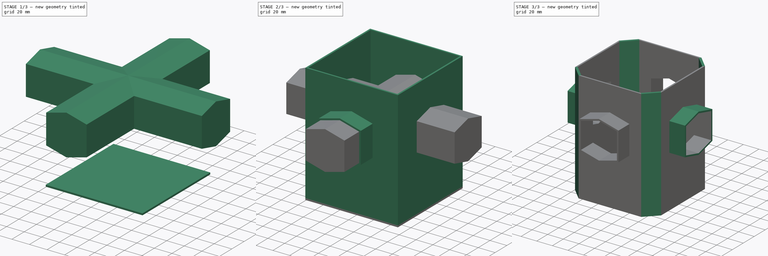
[diagram: build sequence overview — one tinted view per stage of 3, left to right]
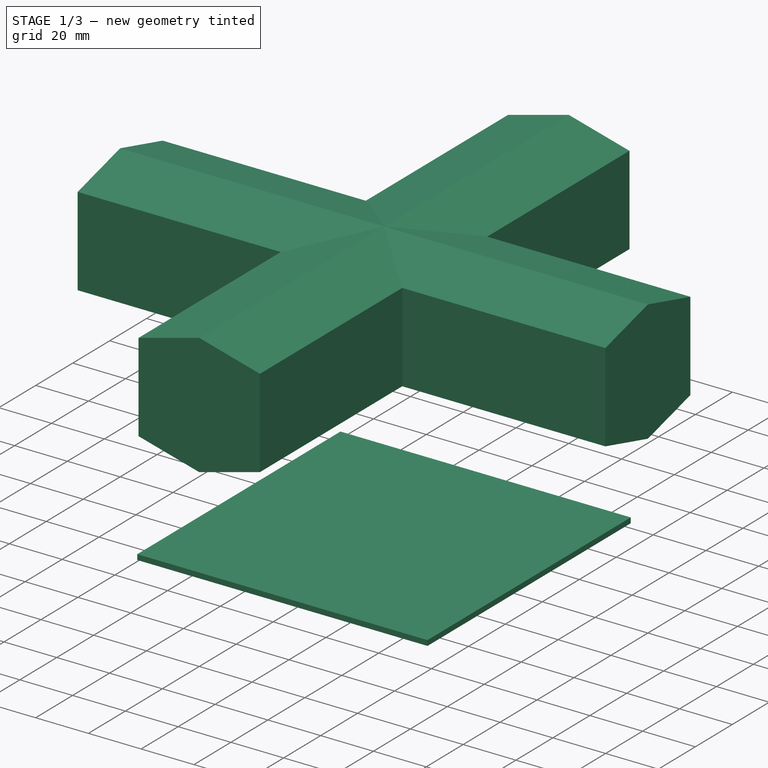
[diagram: stage 1 of 3 — iso view after this stage's code; geometry added in this stage tinted green]
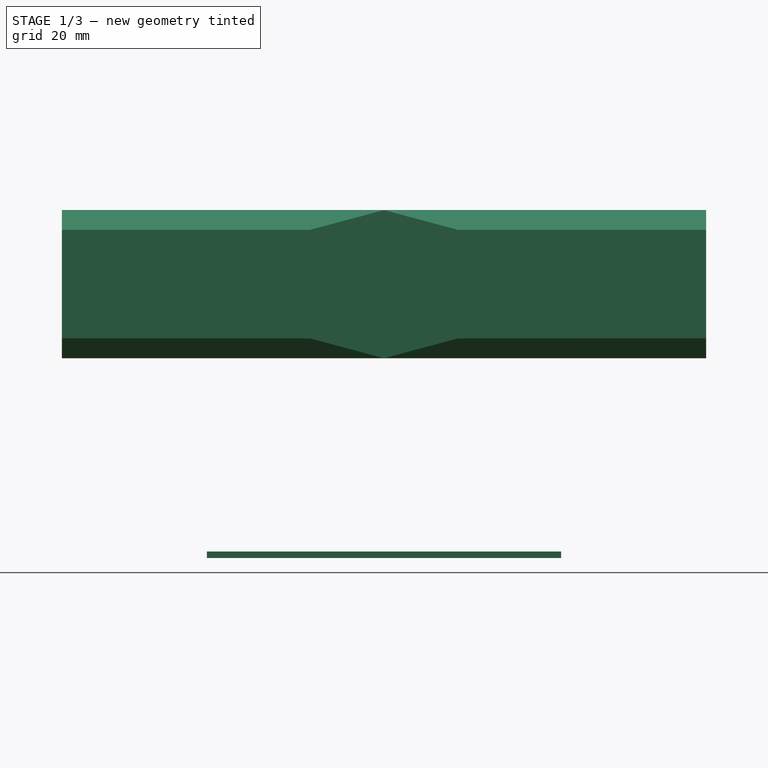
[diagram: stage 1 of 3 — front view after this stage's code; geometry added in this stage tinted green]
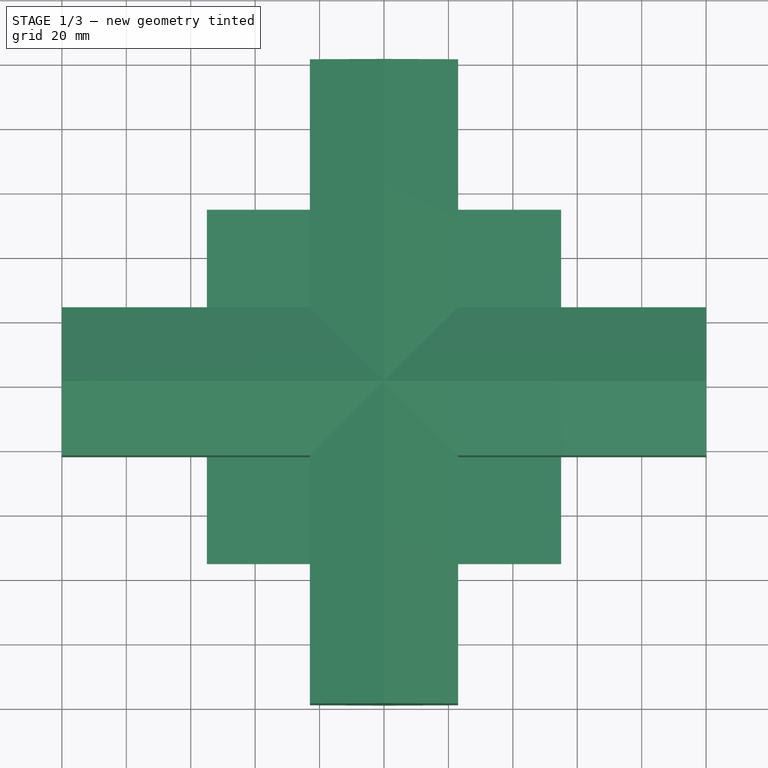
[diagram: stage 1 of 3 — top view after this stage's code; geometry added in this stage tinted green]
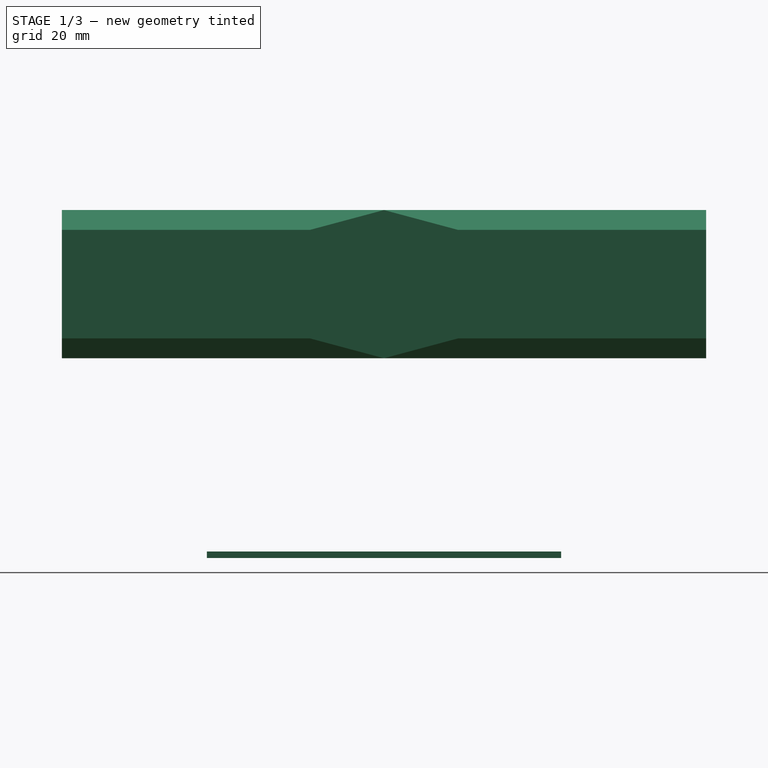
[diagram: stage 1 of 3 — right view after this stage's code; geometry added in this stage tinted green]
FCSTD DOCUMENT  (FreeCAD 0.20R28720 (Git))
Label: Aeroponics_Modular_4-Tower_Hub
License: All rights reserved
LicenseURL: http://en.wikipedia.org/wiki/All_rights_reserved
objects: Sketcher::SketchObject×4, PartDesign::Pad×4, PartDesign::PolarPattern×2, PartDesign::Body×2, Part::Cut×1, Part::Chamfer×1
note: 18 computed .brp shape members not serialized (recipe doc carries the construction recipe); baked Part::Feature solids carry a one-line shape summary decoded from their .brp

FEATURE [Sketcher::SketchObject] Sketch
  FullyConstrained = true
  MapMode = 5
  Support = -> [XY_Plane]
  sketch-geometry (4):
    g0: LineSegment StartX=-55 StartY=55 StartZ=0 EndX=55 EndY=55 EndZ=0
    g1: LineSegment StartX=55 StartY=55 StartZ=0 EndX=55 EndY=-55 EndZ=0
    g2: LineSegment StartX=55 StartY=-55 StartZ=0 EndX=-55 EndY=-55 EndZ=0
    g3: LineSegment StartX=-55 StartY=-55 StartZ=0 EndX=-55 EndY=55 EndZ=0
  constraints (10):
    c: Coincident(g0,g1)
    c: Coincident(g1,g2)
    c: Coincident(g2,g3)
    c: Coincident(g3,g0)
    c: Horizontal(g2)
    c: Vertical(g1)
    c: DistanceX(g2,g2) = 110
    c: Equal(g2,g1)
    c: Symmetric(g0,g0,g-2)
    c: Symmetric(g0,g2,g-1)
FEATURE [PartDesign::Pad] Pad
  Direction = (0,0,1)
  Length = 2
  Length2 = 10
  Profile = -> Sketch
  ReferenceAxis = -> Sketch [N_Axis]
  Type = 0
FEATURE [Sketcher::SketchObject] Sketch002
  FullyConstrained = true
  MapMode = 5
  Placement = pos=(0,-55,0) rot=(1,0,0;1.5708rad)
  Support = -> [Pad001]
  sketch-geometry (6):
    g0: LineSegment StartX=-25 StartY=66.6987 StartZ=0 EndX=0 EndY=60 EndZ=0
    g1: LineSegment StartX=0 StartY=60 StartZ=0 EndX=25 EndY=66.6987 EndZ=0
    g2: LineSegment StartX=-25 StartY=66.6987 StartZ=0 EndX=-25 EndY=103.301 EndZ=0
    g3: LineSegment StartX=25 StartY=66.6987 StartZ=0 EndX=25 EndY=103.301 EndZ=0
    g4: LineSegment StartX=-25 StartY=103.301 StartZ=0 EndX=0 EndY=110 EndZ=0
    g5: LineSegment StartX=0 StartY=110 StartZ=0 EndX=25 EndY=103.301 EndZ=0
  constraints (18):
    c: PointOnObject(g0,g-2)
    c: Coincident(g1,g0)
    c: Equal(g0,g1)
    c: DistanceY(g-1,g0) = 60
    c: DistanceX(g0,g1) = 50
    c: Angle(g1,g0) = 2.61799
    c: Coincident(g2,g0)
    c: Vertical(g2)
    c: Coincident(g3,g1)
    c: Vertical(g3)
    c: Coincident(g4,g2)
    c: PointOnObject(g4,g-2)
    c: Coincident(g5,g4)
    c: Coincident(g5,g3)
    c: Angle(g4,g5) = 2.61799
    c: Equal(g3,g2)
    c: DistanceY(g0,g4) = 50
    c: Horizontal(g0,g1)
FEATURE [Sketcher::SketchObject] Sketch003
  FullyConstrained = true
  MapMode = 5
  Placement = pos=(0,0,0) rot=(1,0,0;1.5708rad)
  Support = -> [XZ_Plane001]
  sketch-geometry (6):
    g0: LineSegment StartX=-23 StartY=68.1628 StartZ=0 EndX=-23 EndY=101.837 EndZ=0
    g1: LineSegment StartX=-23 StartY=101.837 StartZ=0 EndX=0 EndY=108 EndZ=0
    g2: LineSegment StartX=0 StartY=108 StartZ=0 EndX=23 EndY=101.837 EndZ=0
    g3: LineSegment StartX=23 StartY=101.837 StartZ=0 EndX=23 EndY=68.1628 EndZ=0
    g4: LineSegment StartX=23 StartY=68.1628 StartZ=0 EndX=0 EndY=62 EndZ=0
    g5: LineSegment StartX=0 StartY=62 StartZ=0 EndX=-23 EndY=68.1628 EndZ=0
  constraints (18):
    c: Vertical(g0)
    c: PointOnObject(g1,g-2)
    c: Coincident(g3,g2)
    c: Vertical(g3)
    c: PointOnObject(g4,g-2)
    c: Coincident(g3,g4)
    c: Coincident(g0,g5)
    c: Coincident(g0,g1)
    c: Coincident(g1,g2)
    c: Coincident(g4,g5)
    c: Angle(g1,g2) = 2.61799
    c: Angle(g4,g5) = 2.61799
    c: Equal(g1,g2)
    c: Equal(g5,g4)
    c: Equal(g3,g0)
    c: DistanceX(g0,g3) = 46
    c: DistanceY(g-1,g4) = 62
    c: DistanceY(g4,g1) = 46
FEATURE [PartDesign::Pad] Pad002
  Direction = (0,-1,-2e-16)
  Length = 100
  Length2 = 10
  Placement = pos=(0,0,0) rot=(1,0,0;1.5708rad)
  Profile = -> Sketch003
  ReferenceAxis = -> Sketch003 [N_Axis]
  Type = 0
FEATURE [PartDesign::Body] Body
  Group = -> [Sketch,Pad,Sketch001,Pad001,Sketch002,Pad003,PolarPattern]
  Origin = -> Origin
  Tip = -> PolarPattern
FEATURE [PartDesign::PolarPattern] PolarPattern001
  Angle = 360
  Axis = -> Z_Axis001
  BaseFeature = -> Pad002
  Occurrences = 4
  Originals = -> [Pad002]
  Overlap = 0
  Placement = pos=(0,0,0) rot=(1,0,0;1.5708rad)
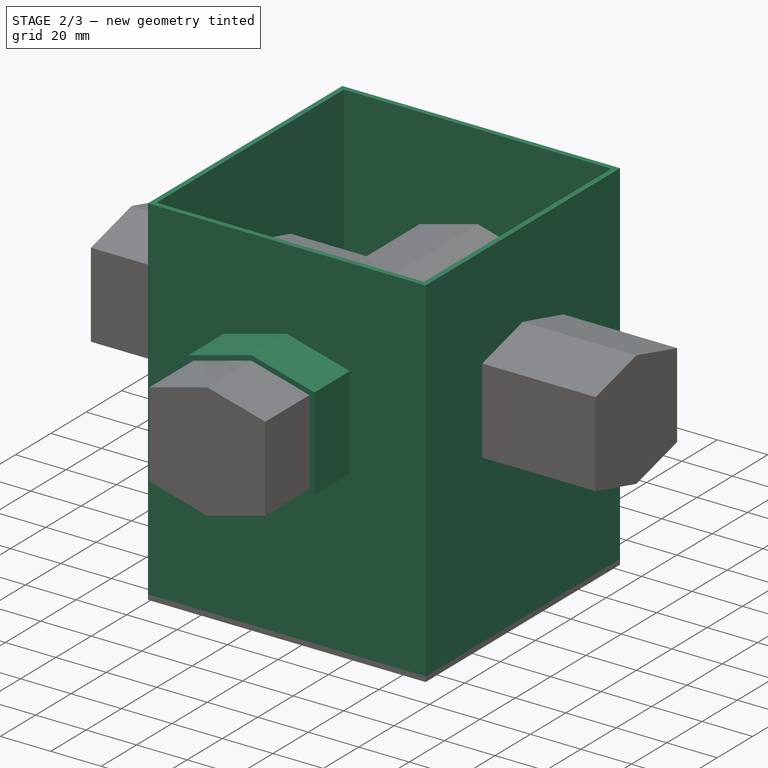
[diagram: stage 2 of 3 — iso view after this stage's code; geometry added in this stage tinted green]
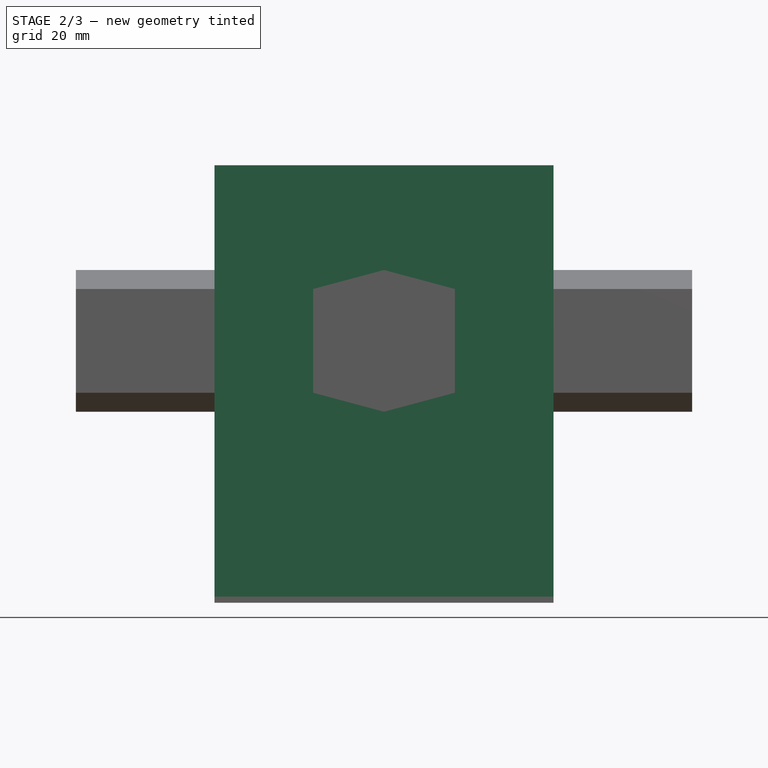
[diagram: stage 2 of 3 — front view after this stage's code; geometry added in this stage tinted green]
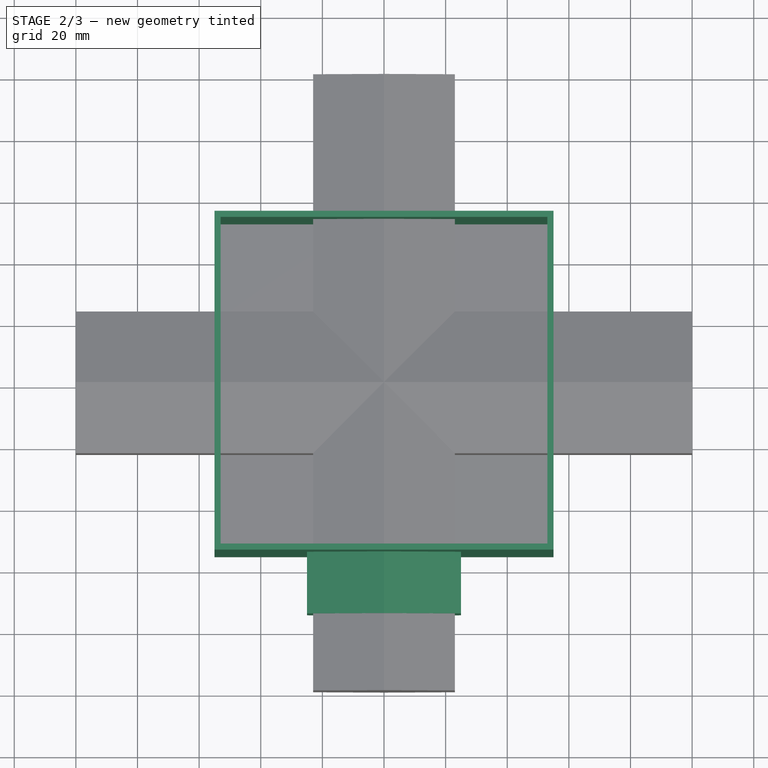
[diagram: stage 2 of 3 — top view after this stage's code; geometry added in this stage tinted green]
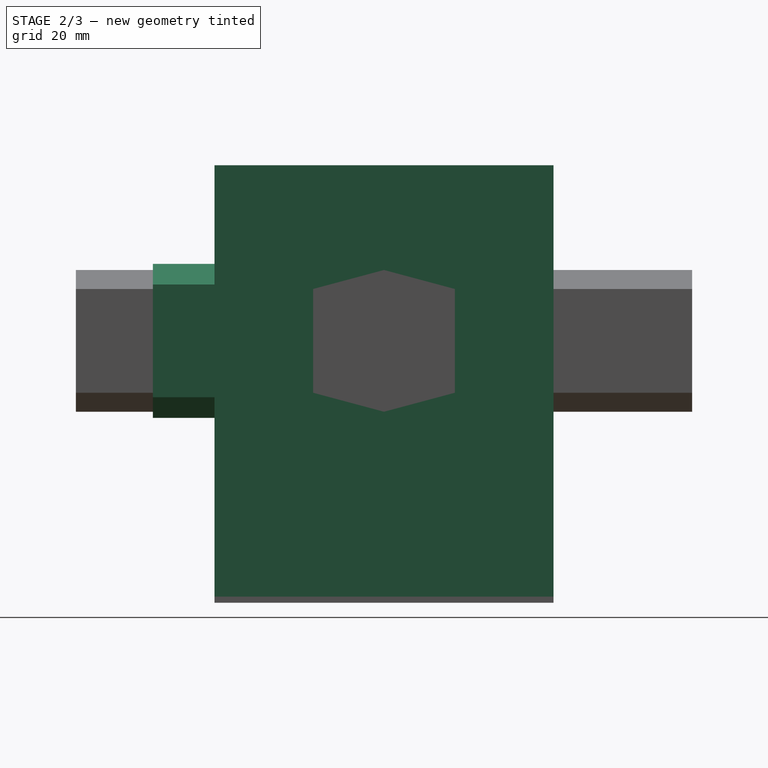
[diagram: stage 2 of 3 — right view after this stage's code; geometry added in this stage tinted green]
FEATURE [Sketcher::SketchObject] Sketch001
  FullyConstrained = true
  MapMode = 5
  Placement = pos=(0,0,2) rot=(0,0,1;0rad)
  Support = -> [Pad]
  sketch-geometry (8):
    g0: LineSegment StartX=-53 StartY=53 StartZ=0 EndX=53 EndY=53 EndZ=0
    g1: LineSegment StartX=53 StartY=53 StartZ=0 EndX=53 EndY=-53 EndZ=0
    g2: LineSegment StartX=53 StartY=-53 StartZ=0 EndX=-53 EndY=-53 EndZ=0
    g3: LineSegment StartX=-53 StartY=-53 StartZ=0 EndX=-53 EndY=53 EndZ=0
    g4: LineSegment StartX=-55 StartY=55 StartZ=0 EndX=55 EndY=55 EndZ=0
    g5: LineSegment StartX=55 StartY=55 StartZ=0 EndX=55 EndY=-55 EndZ=0
    g6: LineSegment StartX=55 StartY=-55 StartZ=0 EndX=-55 EndY=-55 EndZ=0
    g7: LineSegment StartX=-55 StartY=-55 StartZ=0 EndX=-55 EndY=55 EndZ=0
  constraints (20):
    c: Coincident(g0,g1)
    c: Coincident(g1,g2)
    c: Coincident(g2,g3)
    c: Coincident(g3,g0)
    c: Horizontal(g0)
    c: Vertical(g3)
    c: Coincident(g4,g5)
    c: Coincident(g5,g6)
    c: Coincident(g6,g7)
    c: Coincident(g7,g4)
    c: Horizontal(g6)
    c: Vertical(g7)
    c: Symmetric(g4,g4,g-2)
    c: Symmetric(g5,g4,g-1)
    c: Equal(g5,g6)
    c: DistanceX(g6,g6) = 110
    c: Symmetric(g1,g2,g-2)
    c: Symmetric(g0,g1,g-1)
    c: DistanceX(g0,g0) = 106
    c: Equal(g0,g1)
FEATURE [PartDesign::Pad] Pad001
  BaseFeature = -> Pad
  Direction = (0,0,1)
  Length = 140
  Length2 = 10
  Profile = -> Sketch001
  ReferenceAxis = -> Sketch001 [N_Axis]
  Type = 0
FEATURE [PartDesign::Pad] Pad003
  BaseFeature = -> Pad001
  Direction = (0,-1,2e-16)
  Length = 20
  Length2 = 10
  Profile = -> Sketch002
  ReferenceAxis = -> Sketch002 [N_Axis]
  Type = 0
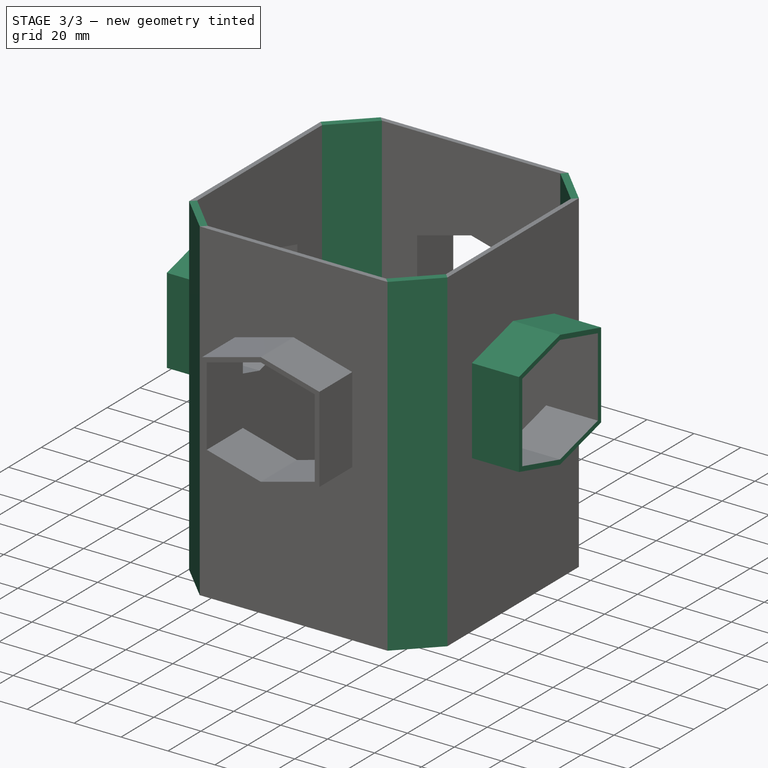
[diagram: stage 3 of 3 — iso view after this stage's code; geometry added in this stage tinted green]
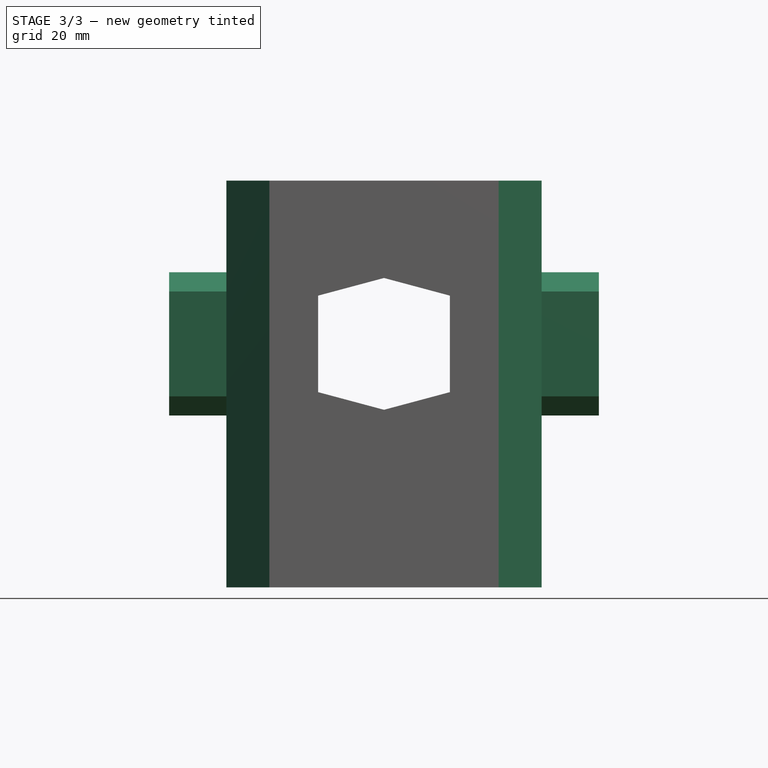
[diagram: stage 3 of 3 — front view after this stage's code; geometry added in this stage tinted green]
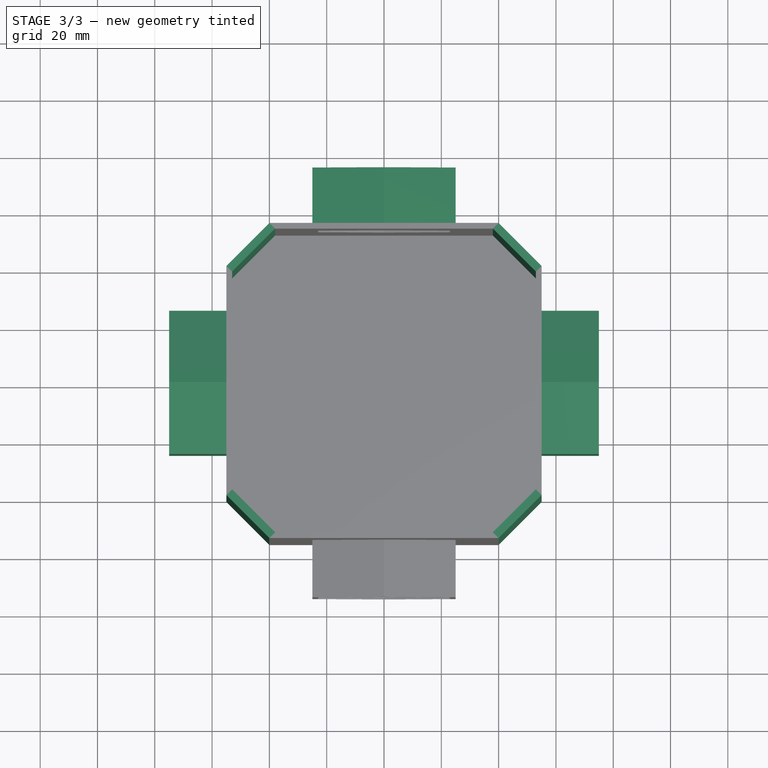
[diagram: stage 3 of 3 — top view after this stage's code; geometry added in this stage tinted green]
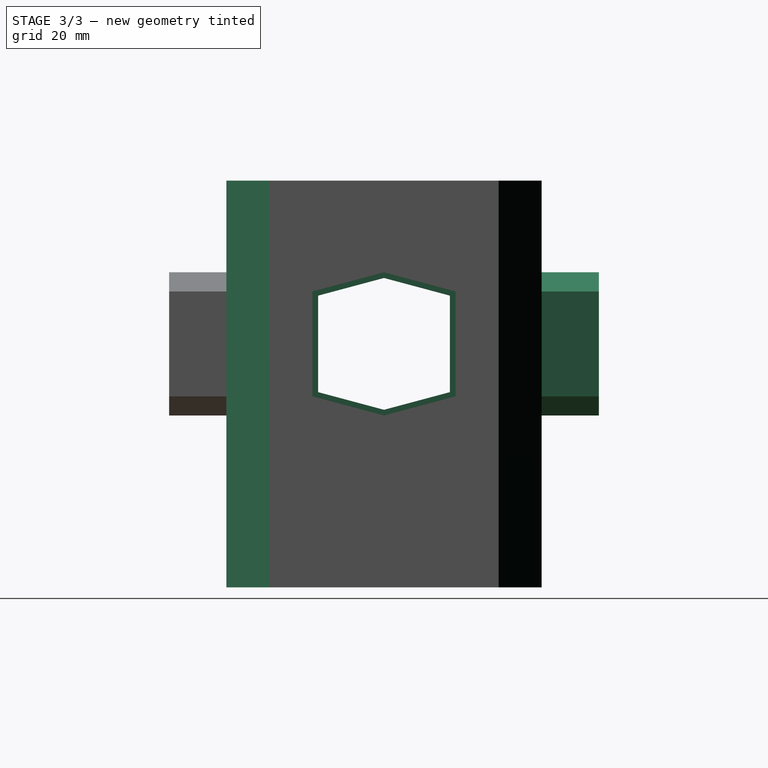
[diagram: stage 3 of 3 — right view after this stage's code; geometry added in this stage tinted green]
FEATURE [PartDesign::PolarPattern] PolarPattern
  Angle = 360
  Axis = -> Z_Axis
  BaseFeature = -> Pad003
  Occurrences = 4
  Originals = -> [Pad003]
  Overlap = 0
FEATURE [PartDesign::Body] Body001
  Group = -> [Sketch003,Pad002,PolarPattern001]
  Origin = -> Origin001
  Tip = -> PolarPattern001
FEATURE [Part::Cut] Cut
  Base = -> Body
  Tool = -> Body001
FEATURE [Part::Chamfer] Chamfer
  Base = -> Cut
  Edges = 12 edges r=15: [Edge1,Edge2,Edge5,Edge8,Edge12,Edge14,Edge22,Edge31,Edge85,Edge87,Edge95,Edge103]
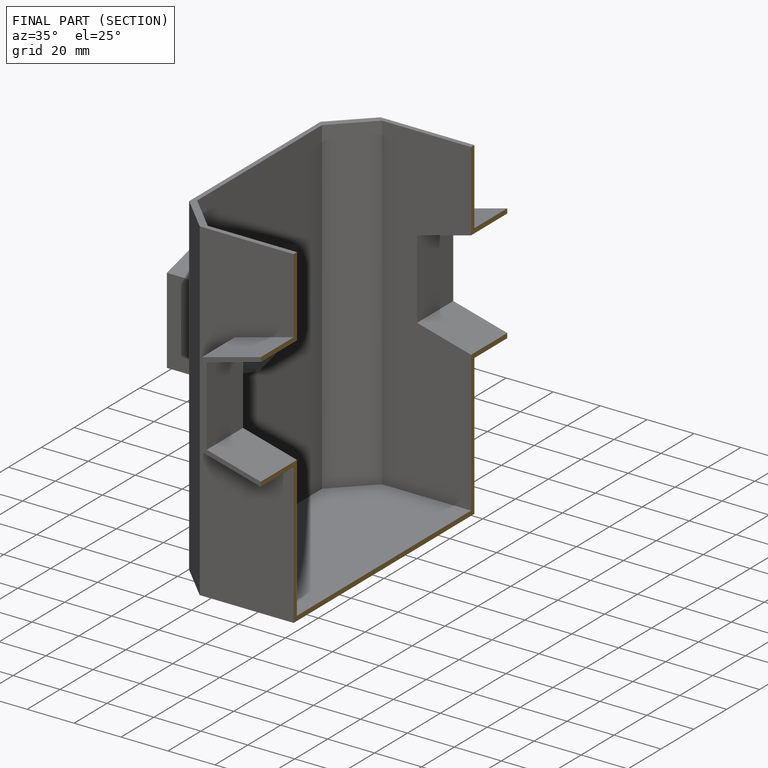
[diagram: finished part — half-section view (interior)]
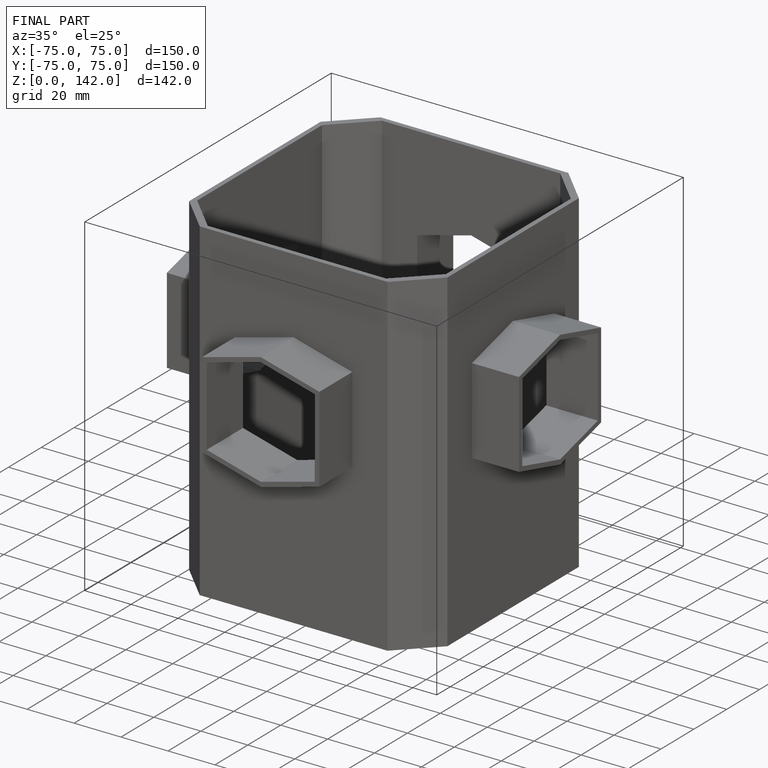
[diagram: finished part — iso view with bounding-box wireframe]
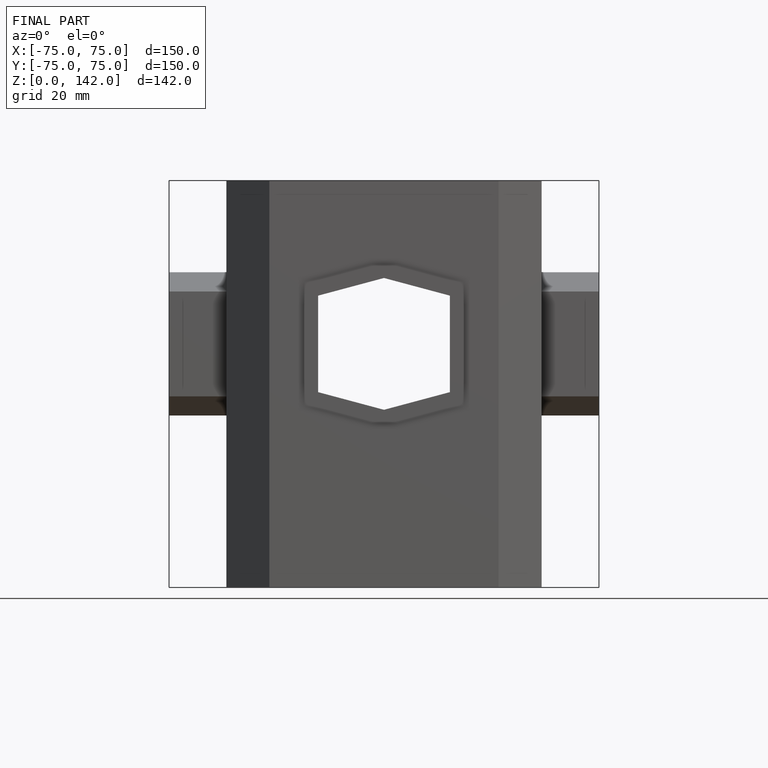
[diagram: finished part — front view with bounding-box wireframe]
